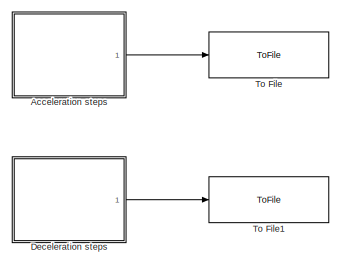
[diagram: root canvas - part 1/3, top left region]
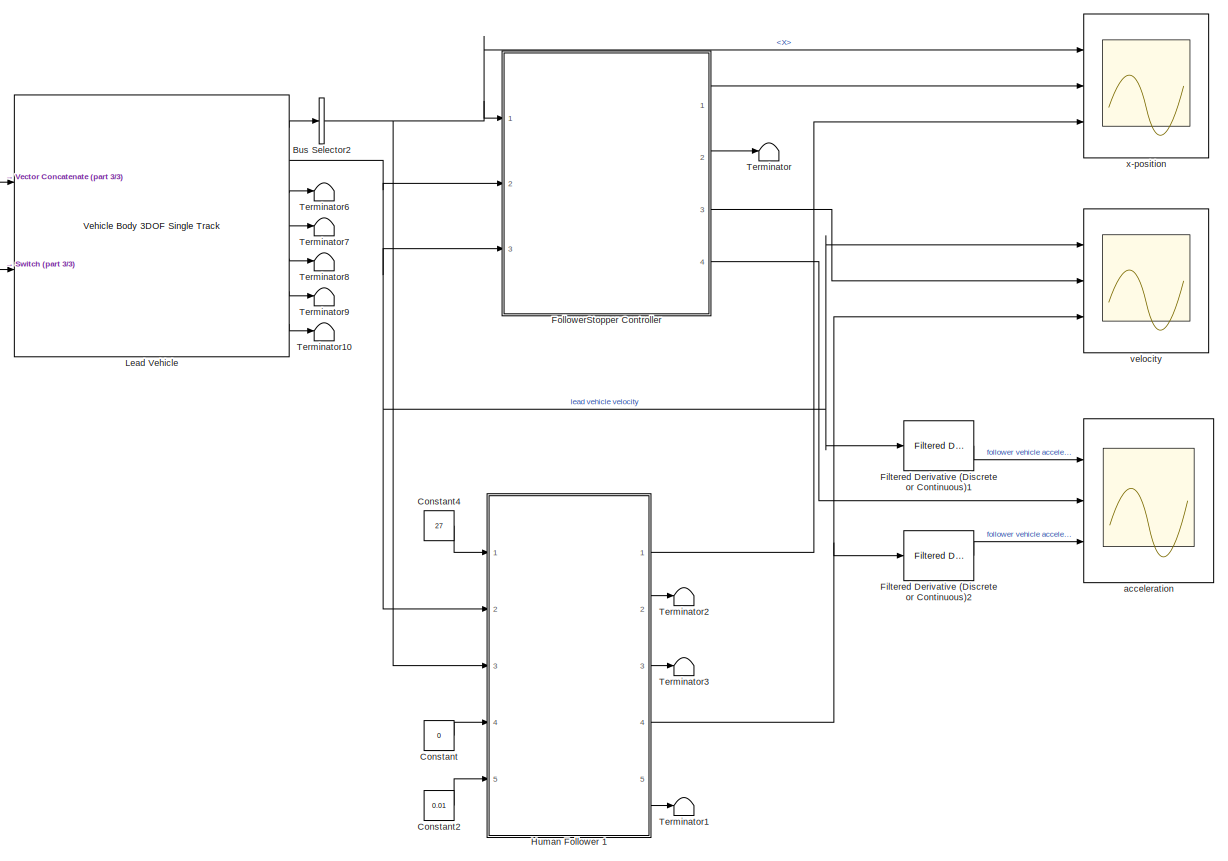
[diagram: root canvas - part 2/3, central region]
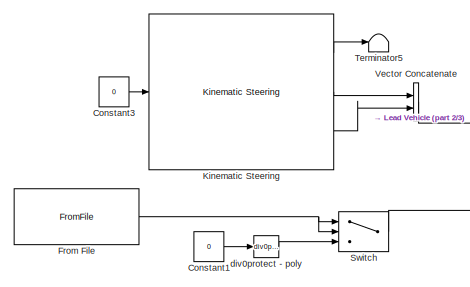
[diagram: root canvas - part 3/3, middle left region]
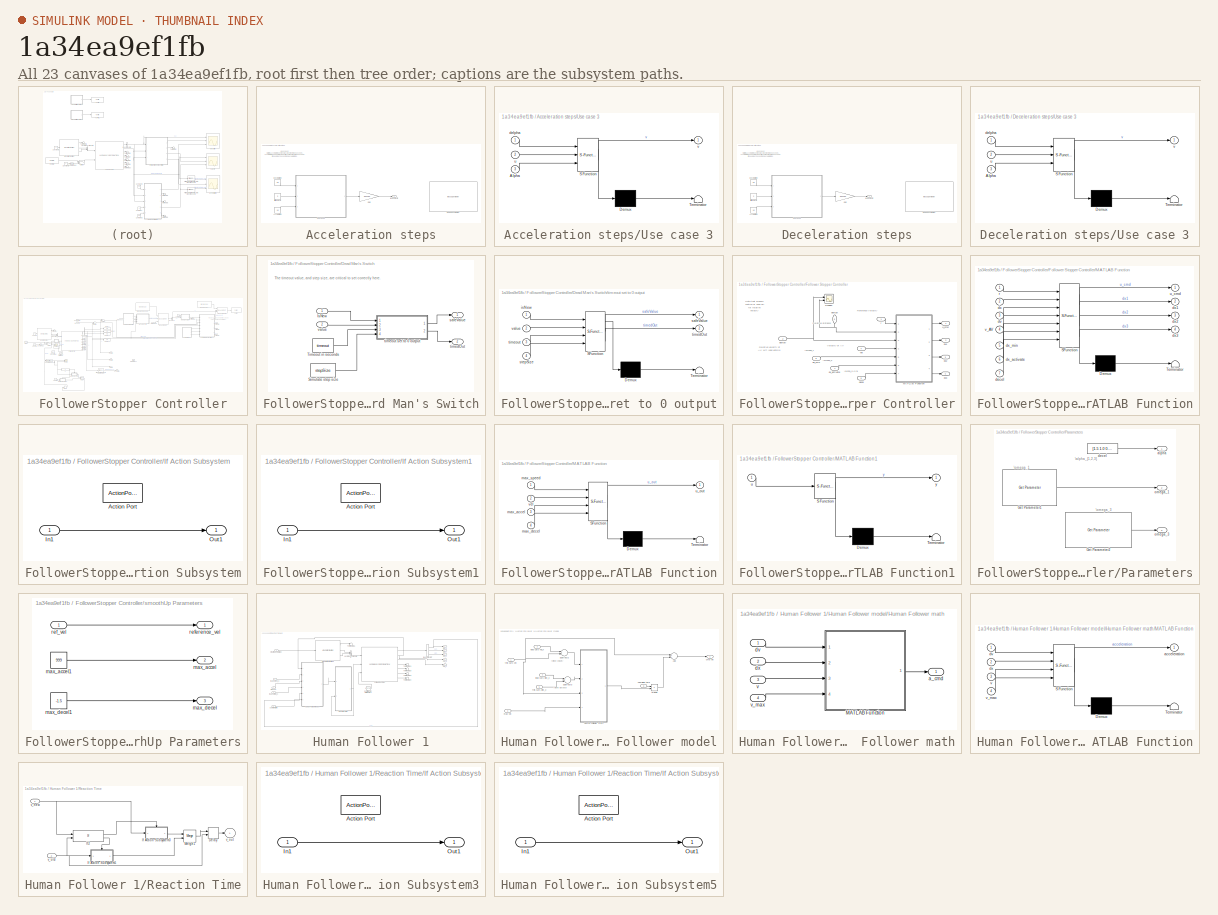
[diagram: thumbnail index - all 23 canvases of the model, root first then tree order]
MODEL slx_1a34ea9ef1fb
KIND model
CONFIG AbsTol = auto
CONFIG EnableMultiTasking = off
CONFIG FixedStep = 0.01
CONFIG MaxStep = auto
CONFIG MinStep = auto
CONFIG RelTol = 1e-3
CONFIG SampleTimeConstraint = Unconstrained
CONFIG Solver = FixedStepAuto
CONFIG SolverName = FixedStepAuto
CONFIG StartTime = 0.0
CONFIG StopTime = 240
BLOCK [SubSystem] Acceleration steps
  Commented = on
  Ports = [0, 1]
  RequestExecContextInheritance = off
BLOCK [Constant] Acceleration steps/Acceleration
  Value = 1.5
BLOCK [Constant] Acceleration steps/Deceleration
  Value = -1.5
BLOCK [Gain] Acceleration steps/Gain
  Gain = 0.44704
  OutDataTypeStr = Inherit: Inherit via internal rule
  ParamDataTypeStr = Inherit: Inherit via internal rule
  SaturateOnIntegerOverflow = off
BLOCK [Constant] Acceleration steps/Initial Velocity
  Value = 0
BLOCK [MessageViewer] Acceleration steps/Sequence Viewer
BLOCK [SubSystem] Acceleration steps/Use case 3
  ErrorFcn = Stateflow.Translate.translate
  PermitHierarchicalResolution = ExplicitOnly
  Ports = [3, 1]
  RequestExecContextInheritance = off
  SFBlockType = Chart
  TreatAsAtomicUnit = on
BLOCK [Demux] Acceleration steps/Use case 3/ Demux 
  Outputs = 1
  Ports = [1, 1]
BLOCK [S-Function] Acceleration steps/Use case 3/ SFunction 
  EnableBusSupport = on
  FunctionName = sf_sfun
  PortCounts = [3 2]
  Ports = [3, 2]
  SFcnIsStateOwnerBlock = off
  SFunctionDeploymentMode = off
  Tag = Stateflow S-Function delayTestVehicleModel 3
BLOCK [Terminator] Acceleration steps/Use case 3/ Terminator 
BLOCK [Inport] Acceleration steps/Use case 3/Alpha
  IconDisplay = Port number
  Port = 3
BLOCK [Inport] Acceleration steps/Use case 3/delpha
  IconDisplay = Port number
BLOCK [Inport] Acceleration steps/Use case 3/u
  IconDisplay = Port number
  Port = 2
BLOCK [Outport] Acceleration steps/Use case 3/v
  IconDisplay = Port number
BLOCK [Outport] Acceleration steps/lead velocity
  IconDisplay = Port number
BLOCK [BusSelector] Bus Selector2
  OutputAsBus = off
  OutputSignals = InertFrm.Geom.Disp.X
  Ports = [1, 1]
BLOCK [Constant] Constant
  Value = 0
BLOCK [Constant] Constant1
  Value = 0
BLOCK [Constant] Constant2
  Value = 0.01
BLOCK [Constant] Constant3
  Value = 0
BLOCK [Constant] Constant4
  Value = 27
BLOCK [SubSystem] Deceleration steps
  Commented = on
  Ports = [0, 1]
  RequestExecContextInheritance = off
BLOCK [Constant] Deceleration steps/Acceleration
  Value = 1.5
BLOCK [Constant] Deceleration steps/Deceleration
  Value = -1.5
BLOCK [Gain] Deceleration steps/Gain
  Gain = 0.44704
  OutDataTypeStr = Inherit: Inherit via internal rule
  ParamDataTypeStr = Inherit: Inherit via internal rule
  SaturateOnIntegerOverflow = off
BLOCK [Constant] Deceleration steps/Initial Velocity
  Value = 0
BLOCK [MessageViewer] Deceleration steps/Sequence Viewer
BLOCK [SubSystem] Deceleration steps/Use case 3
  ErrorFcn = Stateflow.Translate.translate
  PermitHierarchicalResolution = ExplicitOnly
  Ports = [3, 1]
  RequestExecContextInheritance = off
  SFBlockType = Chart
  TreatAsAtomicUnit = on
BLOCK [Demux] Deceleration steps/Use case 3/ Demux 
  Outputs = 1
  Ports = [1, 1]
BLOCK [S-Function] Deceleration steps/Use case 3/ SFunction 
  EnableBusSupport = on
  FunctionName = sf_sfun
  PortCounts = [3 2]
  Ports = [3, 2]
  SFcnIsStateOwnerBlock = off
  SFunctionDeploymentMode = off
  Tag = Stateflow S-Function delayTestVehicleModel 4
BLOCK [Terminator] Deceleration steps/Use case 3/ Terminator 
BLOCK [Inport] Deceleration steps/Use case 3/Alpha
  IconDisplay = Port number
  Port = 3
BLOCK [Inport] Deceleration steps/Use case 3/delpha
  IconDisplay = Port number
BLOCK [Inport] Deceleration steps/Use case 3/u
  IconDisplay = Port number
  Port = 2
BLOCK [Outport] Deceleration steps/Use case 3/v
  IconDisplay = Port number
BLOCK [Outport] Deceleration steps/lead velocity
  IconDisplay = Port number
BLOCK [Reference] Filtered Derivative (Discrete or Continuous)1  REF=peGeneralControl/Filtered Derivative
(Discrete or Continuous)
  Ports = [1, 1]
  SourceBlock = peGeneralControl/Filtered Derivative\n(Discrete or Continuous)
  SourceType = Filtered Derivative (Discrete or Continuous)
BLOCK [Reference] Filtered Derivative (Discrete or Continuous)2  REF=peGeneralControl/Filtered Derivative
(Discrete or Continuous)
  Ports = [1, 1]
  SourceBlock = peGeneralControl/Filtered Derivative\n(Discrete or Continuous)
  SourceType = Filtered Derivative (Discrete or Continuous)
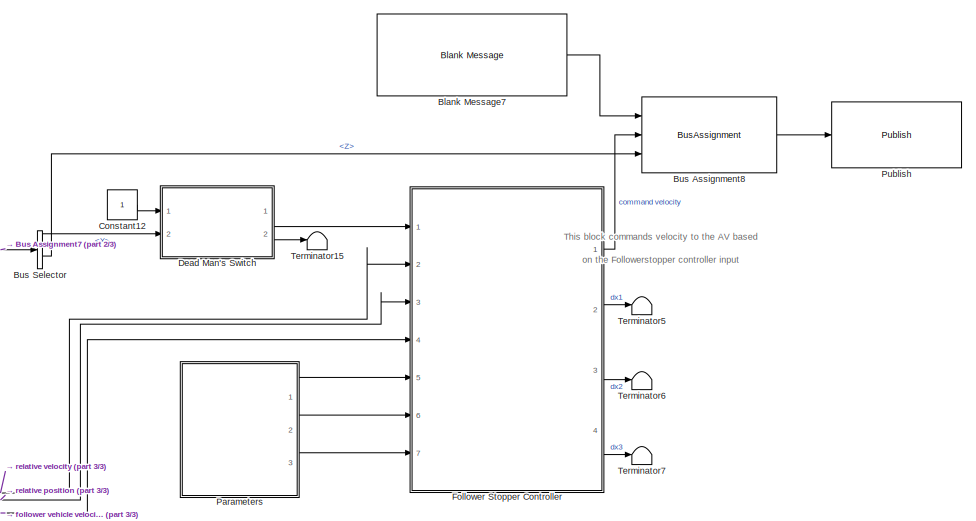
[diagram: FollowerStopper Controller - part 1/3, top right region]
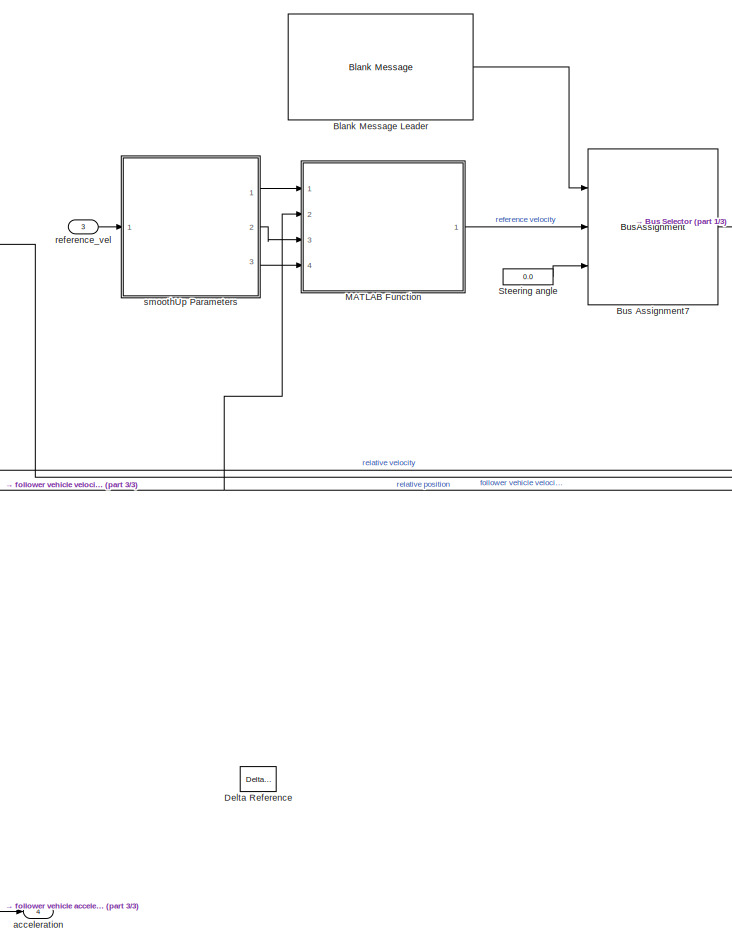
[diagram: FollowerStopper Controller - part 2/3, center side, full height]
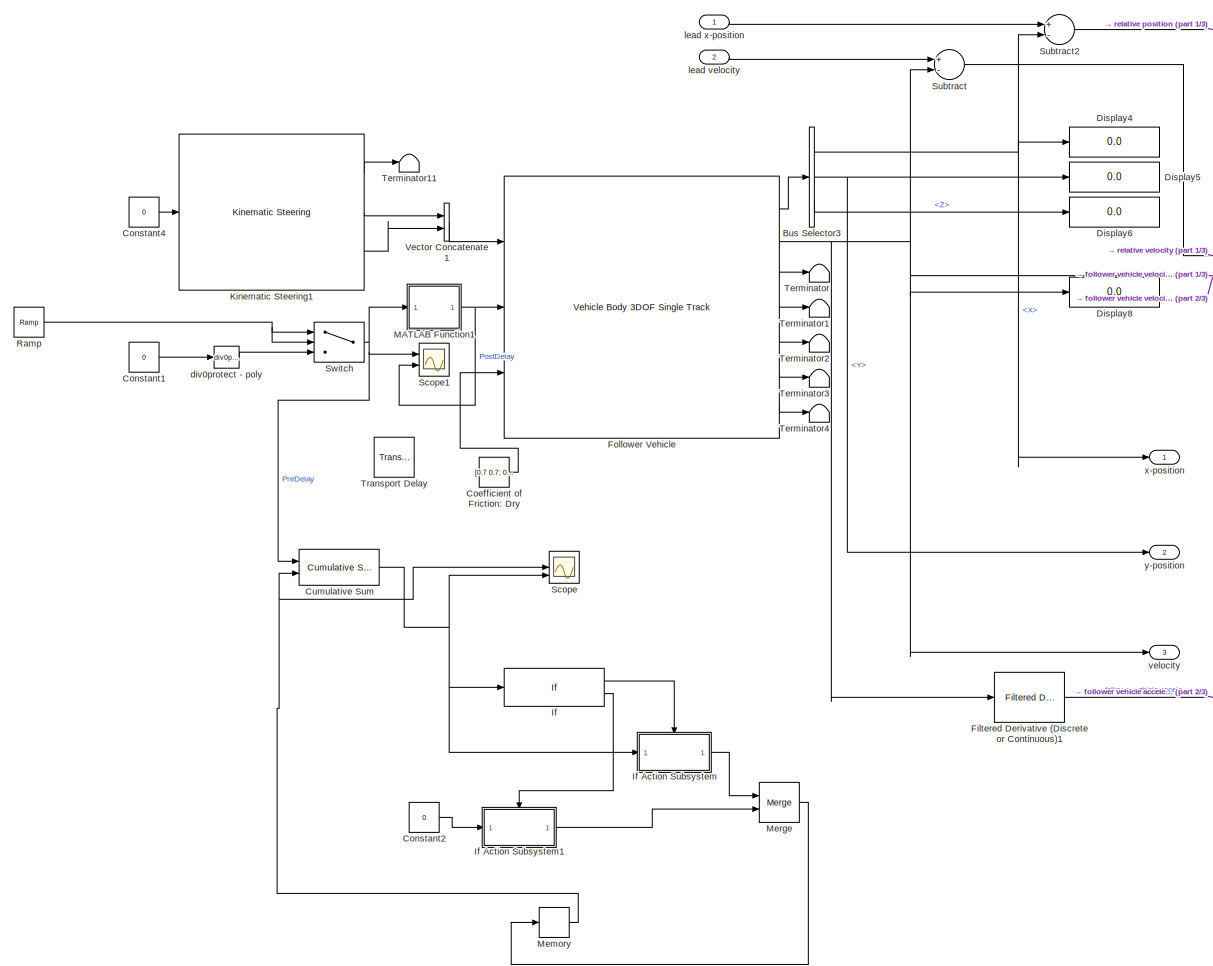
[diagram: FollowerStopper Controller - part 3/3, left side, full height]
BLOCK [SubSystem] FollowerStopper Controller
  Ports = [3, 4]
  RequestExecContextInheritance = off
BLOCK [Reference] FollowerStopper Controller/Blank Message Leader  REF=robotlib/Blank Message
  Ports = [0, 1]
  SourceBlock = robotlib/Blank Message
  SourceProductBaseCode = RO
  SourceProductName = Robotics System Toolbox
  SourceType = ROS Blank Message
BLOCK [Reference] FollowerStopper Controller/Blank Message7  REF=robotlib/Blank Message
  Ports = [0, 1]
  SourceBlock = robotlib/Blank Message
  SourceProductBaseCode = RO
  SourceProductName = Robotics System Toolbox
  SourceType = ROS Blank Message
BLOCK [BusAssignment] FollowerStopper Controller/Bus Assignment7
  AssignedSignals = Linear.X,Angular.Z
  Ports = [3, 1]
BLOCK [BusAssignment] FollowerStopper Controller/Bus Assignment8
  AssignedSignals = Linear.X,Angular.Z
  Ports = [3, 1]
BLOCK [BusSelector] FollowerStopper Controller/Bus Selector
  OutputAsBus = off
  OutputSignals = Linear.X,Angular.Z
  Ports = [1, 2]
BLOCK [BusSelector] FollowerStopper Controller/Bus Selector3
  OutputAsBus = off
  OutputSignals = InertFrm.Geom.Disp.X,InertFrm.Geom.Disp.Y,InertFrm.Geom.Disp.Z
  Ports = [1, 3]
BLOCK [Constant] FollowerStopper Controller/Coefficient of Friction: Dry
  Value = [0.7 0.7; 0.7 0.7]
BLOCK [Constant] FollowerStopper Controller/Constant1
  Value = 0
BLOCK [Constant] FollowerStopper Controller/Constant12
BLOCK [Constant] FollowerStopper Controller/Constant2
  Commented = on
  Value = 0
BLOCK [Constant] FollowerStopper Controller/Constant4
  Value = 0
BLOCK [Reference] FollowerStopper Controller/Cumulative Sum  REF=dspmathops/Cumulative
Sum
  Commented = on
  Ports = [2, 1]
  SourceBlock = dspmathops/Cumulative\nSum
  SourceProductBaseCode = DS
  SourceProductName = DSP System Toolbox
  SourceType = Cumulative Sum
  UserDataPersistent = on
BLOCK [SubSystem] FollowerStopper Controller/Dead Man's Switch
  Ports = [2, 2]
  RequestExecContextInheritance = off
  TreatAsAtomicUnit = on
BLOCK [Inport] FollowerStopper Controller/Dead Man's Switch/IsNew
  IconDisplay = Port number
BLOCK [Constant] FollowerStopper Controller/Dead Man's Switch/Simulate step size
  Value = stepSize
BLOCK [Constant] FollowerStopper Controller/Dead Man's Switch/Timeout in seconds
  Value = timeout
BLOCK [Outport] FollowerStopper Controller/Dead Man's Switch/safeValue
  IconDisplay = Port number
  InitialOutput = [0]
BLOCK [Outport] FollowerStopper Controller/Dead Man's Switch/timedOut
  IconDisplay = Port number
  InitialOutput = [0]
  Port = 2
BLOCK [SubSystem] FollowerStopper Controller/Dead Man's Switch/timeout set to 0 output
  ErrorFcn = Stateflow.Translate.translate
  PermitHierarchicalResolution = ExplicitOnly
  Ports = [4, 2]
  RequestExecContextInheritance = off
  SFBlockType = MATLAB Function
  TreatAsAtomicUnit = on
BLOCK [Demux] FollowerStopper Controller/Dead Man's Switch/timeout set to 0 output/ Demux 
  Outputs = 1
  Ports = [1, 1]
BLOCK [S-Function] FollowerStopper Controller/Dead Man's Switch/timeout set to 0 output/ SFunction 
  EnableBusSupport = on
  FunctionName = sf_sfun
  PortCounts = [4 3]
  Ports = [4, 3]
  SFcnIsStateOwnerBlock = off
  SFunctionDeploymentMode = off
  Tag = Stateflow S-Function delayTestVehicleModel 1
BLOCK [Terminator] FollowerStopper Controller/Dead Man's Switch/timeout set to 0 output/ Terminator 
BLOCK [Inport] FollowerStopper Controller/Dead Man's Switch/timeout set to 0 output/isNew
  IconDisplay = Port number
BLOCK [Outport] FollowerStopper Controller/Dead Man's Switch/timeout set to 0 output/safeValue
  IconDisplay = Port number
BLOCK [Inport] FollowerStopper Controller/Dead Man's Switch/timeout set to 0 output/stepSize
  IconDisplay = Port number
  Port = 4
BLOCK [Outport] FollowerStopper Controller/Dead Man's Switch/timeout set to 0 output/timedOut
  IconDisplay = Port number
  Port = 2
BLOCK [Inport] FollowerStopper Controller/Dead Man's Switch/timeout set to 0 output/timeout
  IconDisplay = Port number
  Port = 3
BLOCK [Inport] FollowerStopper Controller/Dead Man's Switch/timeout set to 0 output/value
  IconDisplay = Port number
  Port = 2
BLOCK [Inport] FollowerStopper Controller/Dead Man's Switch/value
  IconDisplay = Port number
  Port = 2
BLOCK [Reference] FollowerStopper Controller/Delta Reference  REF=pe_lib/Connections/Delta Reference
  Ports = [0, 0, 0, 0, 0, 1]
  SourceBlock = pe_lib/Connections/Delta Reference
  SourceProductBaseCode = PS
  SourceProductName = Simscape Power Systems
  SourceType = Delta Reference
BLOCK [Display] FollowerStopper Controller/Display4
  Decimation = 1
  Ports = [1]
BLOCK [Display] FollowerStopper Controller/Display5
  Decimation = 1
  Ports = [1]
BLOCK [Display] FollowerStopper Controller/Display6
  Decimation = 1
  Ports = [1]
BLOCK [Display] FollowerStopper Controller/Display8
  Decimation = 1
  Ports = [1]
BLOCK [Reference] FollowerStopper Controller/Filtered Derivative (Discrete or Continuous)1  REF=peGeneralControl/Filtered Derivative
(Discrete or Continuous)
  Ports = [1, 1]
  SourceBlock = peGeneralControl/Filtered Derivative\n(Discrete or Continuous)
  SourceType = Filtered Derivative (Discrete or Continuous)
BLOCK [SubSystem] FollowerStopper Controller/Follower Stopper Controller
  Ports = [7, 4]
  RequestExecContextInheritance = off
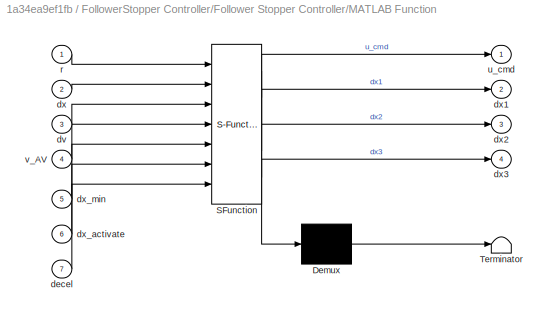
BLOCK [SubSystem] FollowerStopper Controller/Follower Stopper Controller/MATLAB Function
  ErrorFcn = Stateflow.Translate.translate
  PermitHierarchicalResolution = ExplicitOnly
  Ports = [7, 4]
  RequestExecContextInheritance = off
  SFBlockType = MATLAB Function
  TreatAsAtomicUnit = on
BLOCK [Demux] FollowerStopper Controller/Follower Stopper Controller/MATLAB Function/ Demux 
  Outputs = 1
  Ports = [1, 1]
BLOCK [S-Function] FollowerStopper Controller/Follower Stopper Controller/MATLAB Function/ SFunction 
  EnableBusSupport = on
  FunctionName = sf_sfun
  PortCounts = [7 5]
  Ports = [7, 5]
  SFcnIsStateOwnerBlock = off
  SFunctionDeploymentMode = off
  Tag = Stateflow S-Function delayTestVehicleModel 6
BLOCK [Terminator] FollowerStopper Controller/Follower Stopper Controller/MATLAB Function/ Terminator 
BLOCK [Inport] FollowerStopper Controller/Follower Stopper Controller/MATLAB Function/decel
  IconDisplay = Port number
  Port = 7
BLOCK [Inport] FollowerStopper Controller/Follower Stopper Controller/MATLAB Function/dv
  IconDisplay = Port number
  Port = 3
BLOCK [Inport] FollowerStopper Controller/Follower Stopper Controller/MATLAB Function/dx
  IconDisplay = Port number
  Port = 2
BLOCK [Outport] FollowerStopper Controller/Follower Stopper Controller/MATLAB Function/dx1
  IconDisplay = Port number
  Port = 2
BLOCK [Outport] FollowerStopper Controller/Follower Stopper Controller/MATLAB Function/dx2
  IconDisplay = Port number
  Port = 3
BLOCK [Outport] FollowerStopper Controller/Follower Stopper Controller/MATLAB Function/dx3
  IconDisplay = Port number
  Port = 4
BLOCK [Inport] FollowerStopper Controller/Follower Stopper Controller/MATLAB Function/dx_activate
  IconDisplay = Port number
  Port = 6
BLOCK [Inport] FollowerStopper Controller/Follower Stopper Controller/MATLAB Function/dx_min
  IconDisplay = Port number
  Port = 5
BLOCK [Inport] FollowerStopper Controller/Follower Stopper Controller/MATLAB Function/r
  IconDisplay = Port number
BLOCK [Outport] FollowerStopper Controller/Follower Stopper Controller/MATLAB Function/u_cmd
  IconDisplay = Port number
BLOCK [Inport] FollowerStopper Controller/Follower Stopper Controller/MATLAB Function/v_AV
  IconDisplay = Port number
  Port = 4
BLOCK [Scope] FollowerStopper Controller/Follower Stopper Controller/Scope1
  Floating = off
  NumInputPorts = 2
  Ports = [2]
  ScopeSpecificationString = Simulink.scopes.TimeScopeBlockCfg('CurrentConfiguration', extmgr.ConfigurationSet(extmgr.Configuration('Core','General UI',true),extmgr.Configuration('Core','Source UI',true),extmgr.Configuration('Sources','WiredSimulink',true,'DataLoggingVariableName','ScopeData1'),extmgr.Configuration('Visuals','Time Domain',true),extmgr.Configuration('Tools','Plot Navigation',true),extmgr.Configuration('Tools',...<+40ch>
BLOCK [Inport] FollowerStopper Controller/Follower Stopper Controller/decel
  IconDisplay = Port number
  Port = 5
BLOCK [Inport] FollowerStopper Controller/Follower Stopper Controller/deltaV
  IconDisplay = Port number
  Port = 2
BLOCK [Inport] FollowerStopper Controller/Follower Stopper Controller/deltaX
  IconDisplay = Port number
  Port = 3
BLOCK [Outport] FollowerStopper Controller/Follower Stopper Controller/dx1
  IconDisplay = Port number
  Port = 2
BLOCK [Outport] FollowerStopper Controller/Follower Stopper Controller/dx2
  IconDisplay = Port number
  Port = 3
BLOCK [Outport] FollowerStopper Controller/Follower Stopper Controller/dx3
  IconDisplay = Port number
  Port = 4
BLOCK [Inport] FollowerStopper Controller/Follower Stopper Controller/dx_activate
  IconDisplay = Port number
  Port = 7
BLOCK [Inport] FollowerStopper Controller/Follower Stopper Controller/dx_min
  IconDisplay = Port number
  Port = 6
BLOCK [Inport] FollowerStopper Controller/Follower Stopper Controller/r
  IconDisplay = Port number
BLOCK [Outport] FollowerStopper Controller/Follower Stopper Controller/u_cmd
  IconDisplay = Port number
BLOCK [Inport] FollowerStopper Controller/Follower Stopper Controller/vel
  IconDisplay = Port number
  Port = 4
BLOCK [Reference] FollowerStopper Controller/Follower Vehicle  REF=autolibshared/Vehicle Body 3DOF Single Track
  Ports = [3, 7]
  SourceBlock = autolibshared/Vehicle Body 3DOF Single Track
  SourceProductBaseCode = PW
  SourceProductName = Powertrain Blockset
  SourceType = Vehicle Body 3DOF Lateral
BLOCK [If] FollowerStopper Controller/If
  Commented = on
  IfExpression = u1 > 133
  Ports = [1, 2]
BLOCK [SubSystem] FollowerStopper Controller/If Action Subsystem
  Commented = on
  Ports = [1, 1, 0, 0, 0, 0, 0, 1]
  RequestExecContextInheritance = off
  TreatAsAtomicUnit = on
BLOCK [ActionPort] FollowerStopper Controller/If Action Subsystem/Action Port
  ActionType = then
BLOCK [Inport] FollowerStopper Controller/If Action Subsystem/In1
  IconDisplay = Port number
BLOCK [Outport] FollowerStopper Controller/If Action Subsystem/Out1
  IconDisplay = Port number
BLOCK [SubSystem] FollowerStopper Controller/If Action Subsystem1
  Commented = on
  Ports = [1, 1, 0, 0, 0, 0, 0, 1]
  RequestExecContextInheritance = off
  TreatAsAtomicUnit = on
BLOCK [ActionPort] FollowerStopper Controller/If Action Subsystem1/Action Port
  ActionType = else
BLOCK [Inport] FollowerStopper Controller/If Action Subsystem1/In1
  IconDisplay = Port number
BLOCK [Outport] FollowerStopper Controller/If Action Subsystem1/Out1
  IconDisplay = Port number
BLOCK [Reference] FollowerStopper Controller/Kinematic Steering1  REF=vehdynlibsteering/Kinematic Steering
  Ports = [1, 3]
  SourceBlock = vehdynlibsteering/Kinematic Steering
  SourceProductBaseCode = VE
  SourceProductName = Vehicle Dynamics Blockset
  SourceType = Kinematic Steering
BLOCK [SubSystem] FollowerStopper Controller/MATLAB Function
  ErrorFcn = Stateflow.Translate.translate
  PermitHierarchicalResolution = ExplicitOnly
  Ports = [4, 1]
  RequestExecContextInheritance = off
  SFBlockType = MATLAB Function
  TreatAsAtomicUnit = on
BLOCK [Demux] FollowerStopper Controller/MATLAB Function/ Demux 
  Outputs = 1
  Ports = [1, 1]
BLOCK [S-Function] FollowerStopper Controller/MATLAB Function/ SFunction 
  EnableBusSupport = on
  FunctionName = sf_sfun
  PortCounts = [4 2]
  Ports = [4, 2]
  SFcnIsStateOwnerBlock = off
  SFunctionDeploymentMode = off
  Tag = Stateflow S-Function delayTestVehicleModel 2
BLOCK [Terminator] FollowerStopper Controller/MATLAB Function/ Terminator 
BLOCK [Inport] FollowerStopper Controller/MATLAB Function/max_accel
  IconDisplay = Port number
  Port = 3
BLOCK [Inport] FollowerStopper Controller/MATLAB Function/max_decel
  IconDisplay = Port number
  Port = 4
BLOCK [Inport] FollowerStopper Controller/MATLAB Function/max_speed
  IconDisplay = Port number
BLOCK [Outport] FollowerStopper Controller/MATLAB Function/u_out
  IconDisplay = Port number
BLOCK [Inport] FollowerStopper Controller/MATLAB Function/vel
  IconDisplay = Port number
  Port = 2
BLOCK [SubSystem] FollowerStopper Controller/MATLAB Function1
  ErrorFcn = Stateflow.Translate.translate
  PermitHierarchicalResolution = ExplicitOnly
  Ports = [1, 1]
  RequestExecContextInheritance = off
  SFBlockType = MATLAB Function
  TreatAsAtomicUnit = on
BLOCK [Demux] FollowerStopper Controller/MATLAB Function1/ Demux 
  Outputs = 1
  Ports = [1, 1]
BLOCK [S-Function] FollowerStopper Controller/MATLAB Function1/ SFunction 
  EnableBusSupport = on
  FunctionName = sf_sfun
  PortCounts = [1 2]
  Ports = [1, 2]
  SFcnIsStateOwnerBlock = off
  SFunctionDeploymentMode = off
  Tag = Stateflow S-Function delayTestVehicleModel 7
BLOCK [Terminator] FollowerStopper Controller/MATLAB Function1/ Terminator 
BLOCK [Inport] FollowerStopper Controller/MATLAB Function1/u
  IconDisplay = Port number
BLOCK [Outport] FollowerStopper Controller/MATLAB Function1/y
  IconDisplay = Port number
BLOCK [Memory] FollowerStopper Controller/Memory
  Commented = on
BLOCK [Merge] FollowerStopper Controller/Merge
  Commented = on
  Ports = [2, 1]
BLOCK [SubSystem] FollowerStopper Controller/Parameters
  Ports = [0, 3]
  RequestExecContextInheritance = off
BLOCK [Reference] FollowerStopper Controller/Parameters/Get Parameter1  REF=robotlib/Get Parameter
  Ports = [0, 1]
  SourceBlock = robotlib/Get Parameter
  SourceProductBaseCode = RO
  SourceProductName = Robotics System Toolbox
  SourceType = ROS Get Parameter
BLOCK [Reference] FollowerStopper Controller/Parameters/Get Parameter2  REF=robotlib/Get Parameter
  Ports = [0, 1]
  SourceBlock = robotlib/Get Parameter
  SourceProductBaseCode = RO
  SourceProductName = Robotics System Toolbox
  SourceType = ROS Get Parameter
BLOCK [Outport] FollowerStopper Controller/Parameters/alpha
  IconDisplay = Port number
BLOCK [Constant] FollowerStopper Controller/Parameters/decel
  OutDataTypeStr = double
  SampleTime = -1
  Value = [1.5 1.0 0.5]
BLOCK [Outport] FollowerStopper Controller/Parameters/omega_1
  IconDisplay = Port number
  Port = 2
BLOCK [Outport] FollowerStopper Controller/Parameters/omega_3
  IconDisplay = Port number
  Port = 3
BLOCK [Reference] FollowerStopper Controller/Publish  REF=robotlib/Publish
  Ports = [1]
  SourceBlock = robotlib/Publish
  SourceProductBaseCode = RO
  SourceProductName = Robotics System Toolbox
  SourceType = ROS Publish
BLOCK [Reference] FollowerStopper Controller/Ramp  REF=simulink/Sources/Ramp
  Ports = [0, 1]
  SourceBlock = simulink/Sources/Ramp
  SourceProductBaseCode = SL
  SourceProductName = Simulink
  SourceType = Ramp
BLOCK [Scope] FollowerStopper Controller/Scope
  Commented = on
  Floating = off
  NumInputPorts = 3
  Ports = [3]
  ScopeSpecificationString = Simulink.scopes.TimeScopeBlockCfg('CurrentConfiguration', extmgr.ConfigurationSet(extmgr.Configuration('Core','General UI',true),extmgr.Configuration('Core','Source UI',true),extmgr.Configuration('Sources','WiredSimulink',true,'DataLoggingVariableName','ScopeData1'),extmgr.Configuration('Visuals','Time Domain',true,'SerializedDisplays',{struct('MinYLimReal','-4.94146','MaxYLimReal','44.47313','YLa...<+1425ch>
BLOCK [Scope] FollowerStopper Controller/Scope1
  Floating = off
  NumInputPorts = 2
  Ports = [2]
  ScopeSpecificationString = Simulink.scopes.TimeScopeBlockCfg('CurrentConfiguration', extmgr.ConfigurationSet(extmgr.Configuration('Core','General UI',true),extmgr.Configuration('Core','Source UI',true),extmgr.Configuration('Sources','WiredSimulink',true,'DataLoggingVariableName','ScopeData1'),extmgr.Configuration('Visuals','Time Domain',true,'SerializedDisplays',{struct('MinYLimReal','-0.00937','MaxYLimReal','0.08437','YLab...<+1455ch>
BLOCK [Constant] FollowerStopper Controller/Steering angle
  Value = 0.0
BLOCK [Sum] FollowerStopper Controller/Subtract
  InputSameDT = off
  Inputs = +-
  OutDataTypeStr = Inherit: Inherit via internal rule
  Ports = [2, 1]
  SaturateOnIntegerOverflow = off
BLOCK [Sum] FollowerStopper Controller/Subtract2
  InputSameDT = off
  Inputs = +-
  OutDataTypeStr = Inherit: Inherit via internal rule
  Ports = [2, 1]
  SaturateOnIntegerOverflow = off
BLOCK [Switch] FollowerStopper Controller/Switch
  Criteria = u2 > Threshold
  InputSameDT = off
  SaturateOnIntegerOverflow = off
BLOCK [Terminator] FollowerStopper Controller/Terminator
BLOCK [Terminator] FollowerStopper Controller/Terminator1
BLOCK [Terminator] FollowerStopper Controller/Terminator11
BLOCK [Terminator] FollowerStopper Controller/Terminator15
BLOCK [Terminator] FollowerStopper Controller/Terminator2
BLOCK [Terminator] FollowerStopper Controller/Terminator3
BLOCK [Terminator] FollowerStopper Controller/Terminator4
BLOCK [Terminator] FollowerStopper Controller/Terminator5
BLOCK [Terminator] FollowerStopper Controller/Terminator6
BLOCK [Terminator] FollowerStopper Controller/Terminator7
BLOCK [TransportDelay] FollowerStopper Controller/Transport Delay
  Commented = on
  DelayTime = 1.3
  Ports = [1, 1]
BLOCK [Concatenate] FollowerStopper Controller/Vector Concatenate1
  Ports = [2, 1]
BLOCK [Outport] FollowerStopper Controller/acceleration
  IconDisplay = Port number
  Port = 4
BLOCK [Reference] FollowerStopper Controller/div0protect - poly  REF=autolibutils/div0protect - poly
  Ports = [1, 1]
  SourceBlock = autolibutils/div0protect - poly
  SourceProductBaseCode = PW
  SourceProductName = Powertrain Blockset
BLOCK [Inport] FollowerStopper Controller/lead velocity
  IconDisplay = Port number
  Port = 2
BLOCK [Inport] FollowerStopper Controller/lead x-position
  IconDisplay = Port number
BLOCK [Inport] FollowerStopper Controller/reference_vel
  IconDisplay = Port number
  Port = 3
BLOCK [SubSystem] FollowerStopper Controller/smoothUp Parameters
  Ports = [1, 3]
  RequestExecContextInheritance = off
BLOCK [Outport] FollowerStopper Controller/smoothUp Parameters/max_accel
  IconDisplay = Port number
  Port = 2
BLOCK [Constant] FollowerStopper Controller/smoothUp Parameters/max_accel1
  Value = 999
BLOCK [Outport] FollowerStopper Controller/smoothUp Parameters/max_decel
  IconDisplay = Port number
  Port = 3
BLOCK [Constant] FollowerStopper Controller/smoothUp Parameters/max_decel1
  Value = -1.5
BLOCK [Inport] FollowerStopper Controller/smoothUp Parameters/ref_vel
  IconDisplay = Port number
BLOCK [Outport] FollowerStopper Controller/smoothUp Parameters/reference_vel
  IconDisplay = Port number
BLOCK [Outport] FollowerStopper Controller/velocity
  IconDisplay = Port number
  Port = 3
BLOCK [Outport] FollowerStopper Controller/x-position
  IconDisplay = Port number
BLOCK [Outport] FollowerStopper Controller/y-position
  IconDisplay = Port number
  Port = 2
BLOCK [FromFile] From File
  FileName = accelerationSteps.mat
  SampleTime = 0.01
BLOCK [SubSystem] Human Follower 1
  Ports = [5, 5]
  RequestExecContextInheritance = off
BLOCK [BusSelector] Human Follower 1/Bus Selector7
  OutputAsBus = off
  OutputSignals = InertFrm.Cg.Disp.X,InertFrm.Cg.Disp.Y,InertFrm.Cg.Disp.Z
  Ports = [1, 3]
BLOCK [Constant] Human Follower 1/Coefficient of Friction: Dry1
  Value = [0.7 0.7; 0.7 0.7]
BLOCK [Reference] Human Follower 1/Follower Vehicle1  REF=autolibshared/Vehicle Body 3DOF Single Track
  Ports = [3, 7]
  SourceBlock = autolibshared/Vehicle Body 3DOF Single Track
  SourceProductBaseCode = PW
  SourceProductName = Powertrain Blockset
  SourceType = Vehicle Body 3DOF Lateral
BLOCK [SubSystem] Human Follower 1/Human Follower model
  Ports = [6, 1]
  RequestExecContextInheritance = off
BLOCK [Sum] Human Follower 1/Human Follower model/Add
  InputSameDT = off
  OutDataTypeStr = Inherit: Inherit via internal rule
  Ports = [2, 1]
  SaturateOnIntegerOverflow = off
BLOCK [SubSystem] Human Follower 1/Human Follower model/Human Follower math
  Ports = [4, 1]
  RequestExecContextInheritance = off
BLOCK [SubSystem] Human Follower 1/Human Follower model/Human Follower math/MATLAB Function
  ErrorFcn = Stateflow.Translate.translate
  PermitHierarchicalResolution = ExplicitOnly
  Ports = [4, 1]
  RequestExecContextInheritance = off
  SFBlockType = MATLAB Function
  TreatAsAtomicUnit = on
BLOCK [Demux] Human Follower 1/Human Follower model/Human Follower math/MATLAB Function/ Demux 
  Outputs = 1
  Ports = [1, 1]
BLOCK [S-Function] Human Follower 1/Human Follower model/Human Follower math/MATLAB Function/ SFunction 
  EnableBusSupport = on
  FunctionName = sf_sfun
  PortCounts = [4 2]
  Ports = [4, 2]
  SFcnIsStateOwnerBlock = off
  SFunctionDeploymentMode = off
  Tag = Stateflow S-Function delayTestVehicleModel 5
BLOCK [Terminator] Human Follower 1/Human Follower model/Human Follower math/MATLAB Function/ Terminator 
BLOCK [Outport] Human Follower 1/Human Follower model/Human Follower math/MATLAB Function/acceleration
  IconDisplay = Port number
BLOCK [Inport] Human Follower 1/Human Follower model/Human Follower math/MATLAB Function/dv
  IconDisplay = Port number
BLOCK [Inport] Human Follower 1/Human Follower model/Human Follower math/MATLAB Function/dx
  IconDisplay = Port number
  Port = 2
BLOCK [Inport] Human Follower 1/Human Follower model/Human Follower math/MATLAB Function/v
  IconDisplay = Port number
  Port = 3
BLOCK [Inport] Human Follower 1/Human Follower model/Human Follower math/MATLAB Function/v_max
  IconDisplay = Port number
  Port = 4
BLOCK [Outport] Human Follower 1/Human Follower model/Human Follower math/a_cmd
  IconDisplay = Port number
BLOCK [Inport] Human Follower 1/Human Follower model/Human Follower math/dv
  IconDisplay = Port number
BLOCK [Inport] Human Follower 1/Human Follower model/Human Follower math/dx
  IconDisplay = Port number
  Port = 2
BLOCK [Inport] Human Follower 1/Human Follower model/Human Follower math/v
  IconDisplay = Port number
  Port = 3
BLOCK [Inport] Human Follower 1/Human Follower model/Human Follower math/v_max
  IconDisplay = Port number
  Port = 4
BLOCK [Product] Human Follower 1/Human Follower model/Multiply
  InputSameDT = off
  OutDataTypeStr = Inherit: Inherit via internal rule
  Ports = [2, 1]
  RndMeth = Floor
  SaturateOnIntegerOverflow = off
BLOCK [Sum] Human Follower 1/Human Follower model/Subtract2
  InputSameDT = off
  Inputs = +-
  OutDataTypeStr = Inherit: Inherit via internal rule
  Ports = [2, 1]
  SaturateOnIntegerOverflow = off
BLOCK [Sum] Human Follower 1/Human Follower model/Subtract3
  InputSameDT = off
  Inputs = +-
  OutDataTypeStr = Inherit: Inherit via internal rule
  Ports = [2, 1]
  SaturateOnIntegerOverflow = off
BLOCK [Outport] Human Follower 1/Human Follower model/cmd Vel
  IconDisplay = Port number
BLOCK [Inport] Human Follower 1/Human Follower model/lead cars dist_x
  IconDisplay = Port number
  Port = 4
BLOCK [Inport] Human Follower 1/Human Follower model/lead cars vel_x
  IconDisplay = Port number
  Port = 2
BLOCK [Inport] Human Follower 1/Human Follower model/max vel
  IconDisplay = Port number
  Port = 3
BLOCK [Inport] Human Follower 1/Human Follower model/sampling time
  IconDisplay = Port number
  Port = 6
BLOCK [Inport] Human Follower 1/Human Follower model/this cars dist_x
  IconDisplay = Port number
  Port = 5
BLOCK [Inport] Human Follower 1/Human Follower model/this cars vel
  IconDisplay = Port number
BLOCK [Reference] Human Follower 1/Kinematic Steering3  REF=vehdynlibsteering/Kinematic Steering
  Ports = [1, 3]
  SourceBlock = vehdynlibsteering/Kinematic Steering
  SourceProductBaseCode = VE
  SourceProductName = Vehicle Dynamics Blockset
  SourceType = Kinematic Steering
BLOCK [SubSystem] Human Follower 1/Reaction Time
  Ports = [2, 1]
  RequestExecContextInheritance = off
BLOCK [Delay] Human Follower 1/Reaction Time/Delay
  DelayLength = 3
  InitialConditionSource = Input port
  InputPortMap = u0,p4
  Ports = [2, 1]
BLOCK [SubSystem] Human Follower 1/Reaction Time/If Action Subsystem3
  Ports = [1, 1, 0, 0, 0, 0, 0, 1]
  RequestExecContextInheritance = off
  TreatAsAtomicUnit = on
BLOCK [ActionPort] Human Follower 1/Reaction Time/If Action Subsystem3/Action Port
  ActionType = then
BLOCK [Inport] Human Follower 1/Reaction Time/If Action Subsystem3/In1
  IconDisplay = Port number
BLOCK [Outport] Human Follower 1/Reaction Time/If Action Subsystem3/Out1
  IconDisplay = Port number
BLOCK [SubSystem] Human Follower 1/Reaction Time/If Action Subsystem5
  Ports = [1, 1, 0, 0, 0, 0, 0, 1]
  RequestExecContextInheritance = off
  TreatAsAtomicUnit = on
BLOCK [ActionPort] Human Follower 1/Reaction Time/If Action Subsystem5/Action Port
  ActionType = else
BLOCK [Inport] Human Follower 1/Reaction Time/If Action Subsystem5/In1
  IconDisplay = Port number
BLOCK [Outport] Human Follower 1/Reaction Time/If Action Subsystem5/Out1
  IconDisplay = Port number
BLOCK [If] Human Follower 1/Reaction Time/If2
  IfExpression = u2 ~= u1
  NumInputs = 2
  Ports = [2, 2]
BLOCK [Merge] Human Follower 1/Reaction Time/Merge1
  Ports = [2, 1]
BLOCK [Inport] Human Follower 1/Reaction Time/v_new
  IconDisplay = Port number
BLOCK [Inport] Human Follower 1/Reaction Time/v_old
  IconDisplay = Port number
  Port = 2
BLOCK [Outport] Human Follower 1/Reaction Time/v_out
  IconDisplay = Port number
BLOCK [Terminator] Human Follower 1/Terminator13
BLOCK [Terminator] Human Follower 1/Terminator16
BLOCK [Terminator] Human Follower 1/Terminator18
BLOCK [Terminator] Human Follower 1/Terminator19
BLOCK [Terminator] Human Follower 1/Terminator20
BLOCK [Concatenate] Human Follower 1/Vector Concatenate4
  Ports = [2, 1]
BLOCK [Outport] Human Follower 1/dist_x
  IconDisplay = Port number
BLOCK [Outport] Human Follower 1/dist_y
  IconDisplay = Port number
  Port = 2
BLOCK [Outport] Human Follower 1/dist_z
  IconDisplay = Port number
  Port = 3
BLOCK [Inport] Human Follower 1/lead car dist_x
  IconDisplay = Port number
  Port = 3
BLOCK [Inport] Human Follower 1/lead car vel_x
  IconDisplay = Port number
  Port = 2
BLOCK [Inport] Human Follower 1/max vel
  IconDisplay = Port number
BLOCK [Inport] Human Follower 1/sampling time
  IconDisplay = Port number
  Port = 5
BLOCK [Inport] Human Follower 1/stearing angle(rad)
  IconDisplay = Port number
  Port = 4
BLOCK [Outport] Human Follower 1/vel_x
  IconDisplay = Port number
  Port = 4
BLOCK [Outport] Human Follower 1/vel_y
  IconDisplay = Port number
  Port = 5
BLOCK [Reference] Kinematic Steering  REF=vehdynlibsteering/Kinematic Steering
  Ports = [1, 3]
  SourceBlock = vehdynlibsteering/Kinematic Steering
  SourceProductBaseCode = VE
  SourceProductName = Vehicle Dynamics Blockset
  SourceType = Kinematic Steering
BLOCK [Reference] Lead Vehicle  REF=autolibshared/Vehicle Body 3DOF Single Track
  Ports = [2, 7]
  SourceBlock = autolibshared/Vehicle Body 3DOF Single Track
  SourceProductBaseCode = PW
  SourceProductName = Powertrain Blockset
  SourceType = Vehicle Body 3DOF Lateral
BLOCK [Switch] Switch
  Criteria = u2 > Threshold
  InputSameDT = off
  SaturateOnIntegerOverflow = off
BLOCK [Terminator] Terminator
BLOCK [Terminator] Terminator1
BLOCK [Terminator] Terminator10
BLOCK [Terminator] Terminator2
BLOCK [Terminator] Terminator3
BLOCK [Terminator] Terminator5
BLOCK [Terminator] Terminator6
BLOCK [Terminator] Terminator7
BLOCK [Terminator] Terminator8
BLOCK [Terminator] Terminator9
BLOCK [ToFile] To File
  Commented = on
  Filename = accelerationSteps.mat
  Ports = [1]
  SaveFormat = Timeseries
BLOCK [ToFile] To File1
  Commented = on
  Filename = decelerationSteps.mat
  Ports = [1]
  SaveFormat = Timeseries
BLOCK [Concatenate] Vector Concatenate
  Ports = [2, 1]
BLOCK [Scope] acceleration
  Floating = off
  NumInputPorts = 3
  Ports = [3]
  ScopeSpecificationString = Simulink.scopes.TimeScopeBlockCfg('CurrentConfiguration', extmgr.ConfigurationSet(extmgr.Configuration('Core','General UI',true),extmgr.Configuration('Core','Source UI',true),extmgr.Configuration('Sources','WiredSimulink',true,'DataLoggingVariableName','ScopeData3'),extmgr.Configuration('Visuals','Time Domain',true,'SerializedDisplays',{struct('MinYLimReal','-0.28758','MaxYLimReal','2.58824','YLab...<+1506ch>
BLOCK [Reference] div0protect - poly  REF=autolibutils/div0protect - poly
  Ports = [1, 1]
  SourceBlock = autolibutils/div0protect - poly
  SourceProductBaseCode = PW
  SourceProductName = Powertrain Blockset
BLOCK [Scope] velocity
  Floating = off
  NumInputPorts = 3
  Ports = [3]
  ScopeSpecificationString = Simulink.scopes.TimeScopeBlockCfg('CurrentConfiguration', extmgr.ConfigurationSet(extmgr.Configuration('Core','General UI',true),extmgr.Configuration('Core','Source UI',true),extmgr.Configuration('Sources','WiredSimulink',true,'DataLoggingVariableName','ScopeData2'),extmgr.Configuration('Visuals','Time Domain',true,'SerializedDisplays',{struct('MinYLimReal','-0.2808','MaxYLimReal','2.52717','YLabe...<+1614ch>
BLOCK [Scope] x-position
  Floating = off
  NumInputPorts = 3
  Ports = [3]
  ScopeSpecificationString = Simulink.scopes.TimeScopeBlockCfg('CurrentConfiguration', extmgr.ConfigurationSet(extmgr.Configuration('Core','General UI',true),extmgr.Configuration('Core','Source UI',true),extmgr.Configuration('Sources','WiredSimulink',true,'DataLoggingVariableName','ScopeData1'),extmgr.Configuration('Visuals','Time Domain',true,'SerializedDisplays',{struct('MinYLimReal','-187.37498','MaxYLimReal','1686.37478',...<+1601ch>
ANNOTATION Acceleration steps: Use case 3: Start at 0. Accelerate to 20mph. Stay at 20mph for 30 seconds. Accelerate the speed to increase it by 5mph. Stay for 30 seconds. If speed reaches 60mph, decelerate to 0.
ANNOTATION Deceleration steps: Use case 3: Start at 0. Accelerate to 20mph. Stay at 20mph for 30 seconds. Accelerate the speed to increase it by 5mph. Stay for 30 seconds. If speed reaches 60mph, decelerate to 0.
ANNOTATION FollowerStopper Controller: This block commands velocity to the AV based on the Followerstopper controller input
ANNOTATION FollowerStopper Controller/Dead Man's Switch: The timeout value, and step size, are critical to set correctly here.
ANNOTATION FollowerStopper Controller/Follower Stopper Controller: Reference Velocity
ANNOTATION FollowerStopper Controller/Follower Stopper Controller: Relative distance
ANNOTATION FollowerStopper Controller/Follower Stopper Controller: Relative velocity of AV wrt lead vehicle
ANNOTATION FollowerStopper Controller/Follower Stopper Controller: Velocity of AV
ANNOTATION FollowerStopper Controller/Follower Stopper Controller: \alpha_{1,2,3}
ANNOTATION FollowerStopper Controller/Follower Stopper Controller: \omega_1
ANNOTATION FollowerStopper Controller/Follower Stopper Controller: \omega_3
ANNOTATION FollowerStopper Controller/Follower Stopper Controller: Note that Benni's controller uses dU for relative velocity
ANNOTATION FollowerStopper Controller/Parameters: \alpha_{1,2,3}
ANNOTATION FollowerStopper Controller/Parameters: \omega_1
ANNOTATION FollowerStopper Controller/Parameters: \omega_3
ANNOTATION Human Follower 1/Human Follower model: relitive distance
ANNOTATION Human Follower 1/Human Follower model: relitive velocity
LINE Acceleration steps/Acceleration:1 -> Acceleration steps/Use case 3:3
LINE Acceleration steps/Deceleration:1 -> Acceleration steps/Use case 3:1
LINE Acceleration steps/Gain:1 -> Acceleration steps/lead velocity:1
LINE Acceleration steps/Initial Velocity:1 -> Acceleration steps/Use case 3:2
LINE Acceleration steps/Use case 3:1 -> Acceleration steps/Gain:1
LINE Acceleration steps:1 -> To File:1
NET Bus Selector2:1 -> FollowerStopper Controller:1, Human Follower 1:3, x-position:1
LINE Constant1:1 -> div0protect - poly:1
LINE Constant2:1 -> Human Follower 1:5
LINE Constant3:1 -> Kinematic Steering:1
LINE Constant4:1 -> Human Follower 1:1
LINE Constant:1 -> Human Follower 1:4
LINE Deceleration steps/Acceleration:1 -> Deceleration steps/Use case 3:3
LINE Deceleration steps/Deceleration:1 -> Deceleration steps/Use case 3:1
LINE Deceleration steps/Gain:1 -> Deceleration steps/lead velocity:1
LINE Deceleration steps/Initial Velocity:1 -> Deceleration steps/Use case 3:2
LINE Deceleration steps/Use case 3:1 -> Deceleration steps/Gain:1
LINE Deceleration steps:1 -> To File1:1
LINE Filtered Derivative (Discrete or Continuous)1:1 -> acceleration:1
LINE Filtered Derivative (Discrete or Continuous)2:1 -> acceleration:3
LINE FollowerStopper Controller/Blank Message Leader:1 -> FollowerStopper Controller/Bus Assignment7:1
LINE FollowerStopper Controller/Blank Message7:1 -> FollowerStopper Controller/Bus Assignment8:1
LINE FollowerStopper Controller/Bus Assignment7:1 -> FollowerStopper Controller/Bus Selector:1
LINE FollowerStopper Controller/Bus Assignment8:1 -> FollowerStopper Controller/Publish:1
NET FollowerStopper Controller/Bus Selector3:1 -> FollowerStopper Controller/Display4:1, FollowerStopper Controller/Subtract2:2, FollowerStopper Controller/x-position:1
NET FollowerStopper Controller/Bus Selector3:2 -> FollowerStopper Controller/Display5:1, FollowerStopper Controller/y-position:1
LINE FollowerStopper Controller/Bus Selector3:3 -> FollowerStopper Controller/Display6:1
LINE FollowerStopper Controller/Bus Selector:1 -> FollowerStopper Controller/Dead Man's Switch:2
LINE FollowerStopper Controller/Bus Selector:2 -> FollowerStopper Controller/Bus Assignment8:3
LINE FollowerStopper Controller/Coefficient of Friction: Dry:1 -> FollowerStopper Controller/Follower Vehicle:3
LINE FollowerStopper Controller/Constant12:1 -> FollowerStopper Controller/Dead Man's Switch:1
LINE FollowerStopper Controller/Constant1:1 -> FollowerStopper Controller/div0protect - poly:1
LINE FollowerStopper Controller/Constant2:1 -> FollowerStopper Controller/If Action Subsystem1:1
LINE FollowerStopper Controller/Constant4:1 -> FollowerStopper Controller/Kinematic Steering1:1
NET FollowerStopper Controller/Cumulative Sum:1 -> FollowerStopper Controller/If Action Subsystem:1, FollowerStopper Controller/If:1, FollowerStopper Controller/Scope:3
LINE FollowerStopper Controller/Dead Man's Switch/IsNew:1 -> FollowerStopper Controller/Dead Man's Switch/timeout set to 0 output:1
LINE FollowerStopper Controller/Dead Man's Switch/Simulate step size:1 -> FollowerStopper Controller/Dead Man's Switch/timeout set to 0 output:4
LINE FollowerStopper Controller/Dead Man's Switch/Timeout in seconds:1 -> FollowerStopper Controller/Dead Man's Switch/timeout set to 0 output:3
LINE FollowerStopper Controller/Dead Man's Switch/timeout set to 0 output:1 -> FollowerStopper Controller/Dead Man's Switch/safeValue:1
LINE FollowerStopper Controller/Dead Man's Switch/timeout set to 0 output:2 -> FollowerStopper Controller/Dead Man's Switch/timedOut:1
LINE FollowerStopper Controller/Dead Man's Switch/value:1 -> FollowerStopper Controller/Dead Man's Switch/timeout set to 0 output:2
LINE FollowerStopper Controller/Dead Man's Switch:1 -> FollowerStopper Controller/Follower Stopper Controller:1
LINE FollowerStopper Controller/Dead Man's Switch:2 -> FollowerStopper Controller/Terminator15:1
LINE FollowerStopper Controller/Filtered Derivative (Discrete or Continuous)1:1 -> FollowerStopper Controller/acceleration:1
LINE FollowerStopper Controller/Follower Stopper Controller/MATLAB Function:1 -> FollowerStopper Controller/Follower Stopper Controller/u_cmd:1
LINE FollowerStopper Controller/Follower Stopper Controller/MATLAB Function:2 -> FollowerStopper Controller/Follower Stopper Controller/dx1:1
LINE FollowerStopper Controller/Follower Stopper Controller/MATLAB Function:3 -> FollowerStopper Controller/Follower Stopper Controller/dx2:1
LINE FollowerStopper Controller/Follower Stopper Controller/MATLAB Function:4 -> FollowerStopper Controller/Follower Stopper Controller/dx3:1
LINE FollowerStopper Controller/Follower Stopper Controller/decel:1 -> FollowerStopper Controller/Follower Stopper Controller/MATLAB Function:7
NET FollowerStopper Controller/Follower Stopper Controller/deltaV:1 -> FollowerStopper Controller/Follower Stopper Controller/MATLAB Function:3, FollowerStopper Controller/Follower Stopper Controller/Scope1:1
NET FollowerStopper Controller/Follower Stopper Controller/deltaX:1 -> FollowerStopper Controller/Follower Stopper Controller/MATLAB Function:2, FollowerStopper Controller/Follower Stopper Controller/Scope1:2
LINE FollowerStopper Controller/Follower Stopper Controller/dx_activate:1 -> FollowerStopper Controller/Follower Stopper Controller/MATLAB Function:6
LINE FollowerStopper Controller/Follower Stopper Controller/dx_min:1 -> FollowerStopper Controller/Follower Stopper Controller/MATLAB Function:5
LINE FollowerStopper Controller/Follower Stopper Controller/r:1 -> FollowerStopper Controller/Follower Stopper Controller/MATLAB Function:1
LINE FollowerStopper Controller/Follower Stopper Controller/vel:1 -> FollowerStopper Controller/Follower Stopper Controller/MATLAB Function:4
LINE FollowerStopper Controller/Follower Stopper Controller:1 -> FollowerStopper Controller/Bus Assignment8:2
LINE FollowerStopper Controller/Follower Stopper Controller:2 -> FollowerStopper Controller/Terminator5:1
LINE FollowerStopper Controller/Follower Stopper Controller:3 -> FollowerStopper Controller/Terminator6:1
LINE FollowerStopper Controller/Follower Stopper Controller:4 -> FollowerStopper Controller/Terminator7:1
LINE FollowerStopper Controller/Follower Vehicle:1 -> FollowerStopper Controller/Bus Selector3:1
NET FollowerStopper Controller/Follower Vehicle:2 -> FollowerStopper Controller/Display8:1, FollowerStopper Controller/Filtered Derivative (Discrete or Continuous)1:1, FollowerStopper Controller/Follower Stopper Controller:4, FollowerStopper Controller/MATLAB Function:2, FollowerStopper Controller/Subtract:2, FollowerStopper Controller/velocity:1
LINE FollowerStopper Controller/Follower Vehicle:3 -> FollowerStopper Controller/Terminator:1
LINE FollowerStopper Controller/Follower Vehicle:4 -> FollowerStopper Controller/Terminator1:1
LINE FollowerStopper Controller/Follower Vehicle:5 -> FollowerStopper Controller/Terminator2:1
LINE FollowerStopper Controller/Follower Vehicle:6 -> FollowerStopper Controller/Terminator3:1
LINE FollowerStopper Controller/Follower Vehicle:7 -> FollowerStopper Controller/Terminator4:1
LINE FollowerStopper Controller/If Action Subsystem/In1:1 -> FollowerStopper Controller/If Action Subsystem/Out1:1
LINE FollowerStopper Controller/If Action Subsystem1/In1:1 -> FollowerStopper Controller/If Action Subsystem1/Out1:1
LINE FollowerStopper Controller/If Action Subsystem1:1 -> FollowerStopper Controller/Merge:2
LINE FollowerStopper Controller/If Action Subsystem:1 -> FollowerStopper Controller/Merge:1
LINE FollowerStopper Controller/If:1 -> FollowerStopper Controller/If Action Subsystem:ifaction
LINE FollowerStopper Controller/If:2 -> FollowerStopper Controller/If Action Subsystem1:ifaction
LINE FollowerStopper Controller/Kinematic Steering1:1 -> FollowerStopper Controller/Terminator11:1
LINE FollowerStopper Controller/Kinematic Steering1:2 -> FollowerStopper Controller/Vector Concatenate1:1
LINE FollowerStopper Controller/Kinematic Steering1:3 -> FollowerStopper Controller/Vector Concatenate1:2
NET FollowerStopper Controller/MATLAB Function1:1 -> FollowerStopper Controller/Follower Vehicle:2, FollowerStopper Controller/Scope1:2
LINE FollowerStopper Controller/MATLAB Function:1 -> FollowerStopper Controller/Bus Assignment7:2
NET FollowerStopper Controller/Memory:1 -> FollowerStopper Controller/Cumulative Sum:2, FollowerStopper Controller/Scope:2
LINE FollowerStopper Controller/Merge:1 -> FollowerStopper Controller/Memory:1
LINE FollowerStopper Controller/Parameters/Get Parameter1:1 -> FollowerStopper Controller/Parameters/omega_1:1
LINE FollowerStopper Controller/Parameters/Get Parameter2:1 -> FollowerStopper Controller/Parameters/omega_3:1
LINE FollowerStopper Controller/Parameters/decel:1 -> FollowerStopper Controller/Parameters/alpha:1
LINE FollowerStopper Controller/Parameters:1 -> FollowerStopper Controller/Follower Stopper Controller:5
LINE FollowerStopper Controller/Parameters:2 -> FollowerStopper Controller/Follower Stopper Controller:6
LINE FollowerStopper Controller/Parameters:3 -> FollowerStopper Controller/Follower Stopper Controller:7
NET FollowerStopper Controller/Ramp:1 -> FollowerStopper Controller/Switch:1, FollowerStopper Controller/Switch:2
LINE FollowerStopper Controller/Steering angle:1 -> FollowerStopper Controller/Bus Assignment7:3
LINE FollowerStopper Controller/Subtract2:1 -> FollowerStopper Controller/Follower Stopper Controller:3
LINE FollowerStopper Controller/Subtract:1 -> FollowerStopper Controller/Follower Stopper Controller:2
NET FollowerStopper Controller/Switch:1 -> FollowerStopper Controller/Cumulative Sum:1, FollowerStopper Controller/MATLAB Function1:1, FollowerStopper Controller/Scope1:1
LINE FollowerStopper Controller/Vector Concatenate1:1 -> FollowerStopper Controller/Follower Vehicle:1
LINE FollowerStopper Controller/div0protect - poly:1 -> FollowerStopper Controller/Switch:3
LINE FollowerStopper Controller/lead velocity:1 -> FollowerStopper Controller/Subtract:1
LINE FollowerStopper Controller/lead x-position:1 -> FollowerStopper Controller/Subtract2:1
LINE FollowerStopper Controller/reference_vel:1 -> FollowerStopper Controller/smoothUp Parameters:1
LINE FollowerStopper Controller/smoothUp Parameters/max_accel1:1 -> FollowerStopper Controller/smoothUp Parameters/max_accel:1
LINE FollowerStopper Controller/smoothUp Parameters/max_decel1:1 -> FollowerStopper Controller/smoothUp Parameters/max_decel:1
LINE FollowerStopper Controller/smoothUp Parameters/ref_vel:1 -> FollowerStopper Controller/smoothUp Parameters/reference_vel:1
LINE FollowerStopper Controller/smoothUp Parameters:1 -> FollowerStopper Controller/MATLAB Function:1
LINE FollowerStopper Controller/smoothUp Parameters:2 -> FollowerStopper Controller/MATLAB Function:3
LINE FollowerStopper Controller/smoothUp Parameters:3 -> FollowerStopper Controller/MATLAB Function:4
LINE FollowerStopper Controller:1 -> x-position:2
LINE FollowerStopper Controller:2 -> Terminator:1
LINE FollowerStopper Controller:3 -> velocity:2
LINE FollowerStopper Controller:4 -> acceleration:2
NET From File:1 -> Switch:1, Switch:2
NET Human Follower 1/Bus Selector7:1 -> Human Follower 1/Human Follower model:5, Human Follower 1/dist_x:1
LINE Human Follower 1/Bus Selector7:2 -> Human Follower 1/dist_y:1
LINE Human Follower 1/Bus Selector7:3 -> Human Follower 1/dist_z:1
LINE Human Follower 1/Coefficient of Friction: Dry1:1 -> Human Follower 1/Follower Vehicle1:3
LINE Human Follower 1/Follower Vehicle1:1 -> Human Follower 1/Bus Selector7:1
NET Human Follower 1/Follower Vehicle1:2 -> Human Follower 1/Human Follower model:1, Human Follower 1/vel_x:1
LINE Human Follower 1/Follower Vehicle1:3 -> Human Follower 1/vel_y:1
LINE Human Follower 1/Follower Vehicle1:4 -> Human Follower 1/Terminator13:1
LINE Human Follower 1/Follower Vehicle1:5 -> Human Follower 1/Terminator18:1
LINE Human Follower 1/Follower Vehicle1:6 -> Human Follower 1/Terminator19:1
LINE Human Follower 1/Follower Vehicle1:7 -> Human Follower 1/Terminator20:1
LINE Human Follower 1/Human Follower model/Add:1 -> Human Follower 1/Human Follower model/cmd Vel:1
LINE Human Follower 1/Human Follower model/Human Follower math/MATLAB Function:1 -> Human Follower 1/Human Follower model/Human Follower math/a_cmd:1
LINE Human Follower 1/Human Follower model/Human Follower math/dv:1 -> Human Follower 1/Human Follower model/Human Follower math/MATLAB Function:1
LINE Human Follower 1/Human Follower model/Human Follower math/dx:1 -> Human Follower 1/Human Follower model/Human Follower math/MATLAB Function:2
LINE Human Follower 1/Human Follower model/Human Follower math/v:1 -> Human Follower 1/Human Follower model/Human Follower math/MATLAB Function:3
LINE Human Follower 1/Human Follower model/Human Follower math/v_max:1 -> Human Follower 1/Human Follower model/Human Follower math/MATLAB Function:4
LINE Human Follower 1/Human Follower model/Human Follower math:1 -> Human Follower 1/Human Follower model/Multiply:2
LINE Human Follower 1/Human Follower model/Multiply:1 -> Human Follower 1/Human Follower model/Add:2
LINE Human Follower 1/Human Follower model/Subtract2:1 -> Human Follower 1/Human Follower model/Human Follower math:1
LINE Human Follower 1/Human Follower model/Subtract3:1 -> Human Follower 1/Human Follower model/Human Follower math:2
LINE Human Follower 1/Human Follower model/lead cars dist_x:1 -> Human Follower 1/Human Follower model/Subtract3:1
LINE Human Follower 1/Human Follower model/lead cars vel_x:1 -> Human Follower 1/Human Follower model/Subtract2:1
LINE Human Follower 1/Human Follower model/max vel:1 -> Human Follower 1/Human Follower model/Human Follower math:4
LINE Human Follower 1/Human Follower model/sampling time:1 -> Human Follower 1/Human Follower model/Multiply:1
LINE Human Follower 1/Human Follower model/this cars dist_x:1 -> Human Follower 1/Human Follower model/Subtract3:2
NET Human Follower 1/Human Follower model/this cars vel:1 -> Human Follower 1/Human Follower model/Add:1, Human Follower 1/Human Follower model/Human Follower math:3, Human Follower 1/Human Follower model/Subtract2:2
LINE Human Follower 1/Human Follower model:1 -> Human Follower 1/Reaction Time:1
LINE Human Follower 1/Kinematic Steering3:1 -> Human Follower 1/Terminator16:1
LINE Human Follower 1/Kinematic Steering3:2 -> Human Follower 1/Vector Concatenate4:1
LINE Human Follower 1/Kinematic Steering3:3 -> Human Follower 1/Vector Concatenate4:2
LINE Human Follower 1/Reaction Time/Delay:1 -> Human Follower 1/Reaction Time/v_out:1
LINE Human Follower 1/Reaction Time/If Action Subsystem3/In1:1 -> Human Follower 1/Reaction Time/If Action Subsystem3/Out1:1
LINE Human Follower 1/Reaction Time/If Action Subsystem3:1 -> Human Follower 1/Reaction Time/Merge1:1
LINE Human Follower 1/Reaction Time/If Action Subsystem5/In1:1 -> Human Follower 1/Reaction Time/If Action Subsystem5/Out1:1
LINE Human Follower 1/Reaction Time/If Action Subsystem5:1 -> Human Follower 1/Reaction Time/Merge1:2
LINE Human Follower 1/Reaction Time/If2:1 -> Human Follower 1/Reaction Time/If Action Subsystem3:ifaction
LINE Human Follower 1/Reaction Time/If2:2 -> Human Follower 1/Reaction Time/If Action Subsystem5:ifaction
LINE Human Follower 1/Reaction Time/Merge1:1 -> Human Follower 1/Reaction Time/Delay:1
NET Human Follower 1/Reaction Time/v_new:1 -> Human Follower 1/Reaction Time/If Action Subsystem3:1, Human Follower 1/Reaction Time/If2:1
NET Human Follower 1/Reaction Time/v_old:1 -> Human Follower 1/Reaction Time/Delay:2, Human Follower 1/Reaction Time/If Action Subsystem5:1, Human Follower 1/Reaction Time/If2:2
NET Human Follower 1/Reaction Time:1 -> Human Follower 1/Follower Vehicle1:2, Human Follower 1/Reaction Time:2
LINE Human Follower 1/Vector Concatenate4:1 -> Human Follower 1/Follower Vehicle1:1
LINE Human Follower 1/lead car dist_x:1 -> Human Follower 1/Human Follower model:4
LINE Human Follower 1/lead car vel_x:1 -> Human Follower 1/Human Follower model:2
LINE Human Follower 1/max vel:1 -> Human Follower 1/Human Follower model:3
LINE Human Follower 1/sampling time:1 -> Human Follower 1/Human Follower model:6
LINE Human Follower 1/stearing angle(rad):1 -> Human Follower 1/Kinematic Steering3:1
LINE Human Follower 1:1 -> x-position:3
LINE Human Follower 1:2 -> Terminator2:1
LINE Human Follower 1:3 -> Terminator3:1
NET Human Follower 1:4 -> Filtered Derivative (Discrete or Continuous)2:1, velocity:3
LINE Human Follower 1:5 -> Terminator1:1
LINE Kinematic Steering:1 -> Terminator5:1
LINE Kinematic Steering:2 -> Vector Concatenate:1
LINE Kinematic Steering:3 -> Vector Concatenate:2
LINE Lead Vehicle:1 -> Bus Selector2:1
NET Lead Vehicle:2 -> Filtered Derivative (Discrete or Continuous)1:1, FollowerStopper Controller:2, FollowerStopper Controller:3, Human Follower 1:2, velocity:1
LINE Lead Vehicle:3 -> Terminator6:1
LINE Lead Vehicle:4 -> Terminator7:1
LINE Lead Vehicle:5 -> Terminator8:1
LINE Lead Vehicle:6 -> Terminator9:1
LINE Lead Vehicle:7 -> Terminator10:1
LINE Switch:1 -> Lead Vehicle:2
LINE Vector Concatenate:1 -> Lead Vehicle:1
LINE div0protect - poly:1 -> Switch:3
note: NET lines group one-source signal fan-out (src -> all destinations, sorted); 1:1 wires keep LINE
CHART FollowerStopper Controller/Dead Man's Switch/timeout set to 0 output states=1 transitions=1
  STATE_LABEL 'eML_blk_kernel()'
  STATE_LABEL 'SCRIPT:\nfunction [safeValue,timedOut] = fcn(isNew,value,timeout,stepSize)\n%#codegen\npersistent sinceLastMsg\ntimedOut=true;\nif isempty(sinceLastMsg)\n    sinceLastMsg=(timeout/stepSize)+1;\nend\n\nsafeValue=0;\n% if no new message\n% after timeout, we output 0\nif( isNew == true )\n    sinceLastMsg = 0;\nelse\n    sinceLastMsg = sinceLastMsg+1;\nend\n\n% Note: we require step size as an input here, and depend o...<+195ch>'
CHART FollowerStopper Controller/MATLAB Function states=1 transitions=1
  STATE_LABEL 'eML_blk_kernel()'
  STATE_LABEL 'SCRIPT:\nfunction u_out = fcn(max_speed,vel,max_accel,max_decel)\n% #codegen\npersistent y\n\nif isempty(y)\n    y=vel;\nend\n\ndt=0.01;\nif( y > max_speed + max_accel*dt)\n    y = max(max_speed,y - abs(max_decel)*dt);\nelseif( y < max_speed - abs(max_decel)*dt)\n    y = min(max_speed,y + max_accel*dt);\nelse\n    y = max_speed;\nend\n\nu_out = y;'
CHART Acceleration steps/Use case 3 states=12 transitions=6
  STATE_LABEL '<!DOCTYPE HTML PUBLIC "-//W3C//DTD HTML 4.0//EN" "http://www.w3.org/TR/REC-html40/strict.dtd">\n<html><head><meta name="qrichtext" content="1" /><style type="text/css">\np, li { white-space: pre-wrap; }\n</style></head><body style=" font-family:\'Helvetica\'; font-size:12px; font-weight:400; font-style:normal;">\n<p style=" margin-top:0px; margin-bottom:0px; margin-left:0px; margin-right:0px; -qt-block-...<+1195ch>'
  STATE_LABEL 'DecelerateTo0\nentry: entryState = nextState;\nduring: v = getNewVaccel(v, delpha);\nexit: nextState = entryState + 1;'
  STATE_LABEL 'STATE 3'
  STATE_LABEL 'STATE 3'
  STATE_LABEL 'zero\nentry: v = 0;\nduring:v = 0;'
  STATE_LABEL 'STATE 4'
  STATE_LABEL 'STATE 4'
  STATE_LABEL 'Accelerate\nentry: entryState = nextState; v = u2;\nduring: v = getNewVaccel(v, Alpha);\nexit: nextState = entryState + 1;'
  STATE_LABEL 'STATE 2'
  STATE_LABEL 'STATE 2'
  STATE_LABEL 'new_vel = getNewVaccel(init_velocity, acceleration)'
  STATE_LABEL 'SCRIPT:\nfunction new_vel = getNewVaccel(init_velocity, acceleration)\n\nnew_vel = init_velocity + (acceleration*0.05);\n\nend\n'
  STATE_LABEL 'AccelerateTo60_init\nentry: entryState = 1; v = u;\nduring: v = getNewVaccel(v, Alpha)\nexit:  nextState = entryState + 1;'
  STATE_LABEL 'STATE 1'
  STATE_LABEL 'STATE 1'
  STATE_LABEL 'Hold\nentry: u2 = v;\nduring: v = u2;\nexit:'
  STATE_LABEL 'HOLD STATE'
  STATE_LABEL 'HOLD STATE'
CHART Deceleration steps/Use case 3 states=13 transitions=6
  STATE_LABEL '<!DOCTYPE HTML PUBLIC "-//W3C//DTD HTML 4.0//EN" "http://www.w3.org/TR/REC-html40/strict.dtd">\n<html><head><meta name="qrichtext" content="1" /><style type="text/css">\np, li { white-space: pre-wrap; }\n</style></head><body style=" font-family:\'Helvetica\'; font-size:12px; font-weight:400; font-style:normal;">\n<p style=" margin-top:0px; margin-bottom:0px; margin-left:0px; margin-right:0px; -qt-block-...<+1195ch>'
  STATE_LABEL 'DecelerateTo0\nentry: entryState = nextState;\nduring: v = getNewVdecel(v, delpha);\nexit: nextState = entryState + 1;'
  STATE_LABEL 'STATE 3'
  STATE_LABEL 'STATE 3'
  STATE_LABEL 'zero\nentry: v = 0;\nduring:v = 0;'
  STATE_LABEL 'STATE 4'
  STATE_LABEL 'STATE 4'
  STATE_LABEL 'new_vel = getNewVdecel(init_velocity, deceleration)'
  STATE_LABEL 'SCRIPT:\nfunction new_vel = getNewVdecel(init_velocity, deceleration)\n\nnew_vel = init_velocity - abs(deceleration*0.05);\n\nend\n'
  STATE_LABEL 'Accelerate\nentry: entryState = nextState; v = u2;\nduring: v = getNewVdecel(v, Alpha);\nexit: nextState = entryState + 1;'
  STATE_LABEL 'STATE 2'
  STATE_LABEL 'STATE 2'
  STATE_LABEL 'new_vel = getNewVaccel(init_velocity, acceleration)'
  STATE_LABEL 'SCRIPT:\nfunction new_vel = getNewVaccel(init_velocity, acceleration)\n\nnew_vel = init_velocity + (acceleration*0.05);\n\nend\n'
  STATE_LABEL 'AccelerateTo60_init\nentry: entryState = 1; v = u;\nduring: v = getNewVaccel(v, Alpha)\nexit:  nextState = entryState + 1;'
  STATE_LABEL 'STATE 1'
  STATE_LABEL 'STATE 1'
  STATE_LABEL 'Hold\nentry: u2 = v;\nduring: v = u2;\nexit:'
  STATE_LABEL 'HOLD STATE'
  STATE_LABEL 'HOLD STATE'
CHART Human Follower 1/Human Follower model/Human Follower math/MATLAB Function states=1 transitions=1
  STATE_LABEL 'eML_blk_kernel()'
  STATE_LABEL 'SCRIPT:\nfunction acceleration = fcn(dv, dx, v, v_max)\nsd = 2;\n\nif v + dv < 0\n    V = 0;\nend\nif dx <= sd\n    V = 0;\nelseif dx <= 35\n    V = dx - (5 + sd);\nelse\n    V = 30;\nend\n\nif dv + v <= v_max\n    w = v + dv;\nelse\n    w = v_max;\nend\n\nacceleration = 0.1*(V-v) + 0.5*(w-v);\n'
CHART FollowerStopper Controller/Follower Stopper Controller/MATLAB Function states=1 transitions=1
  STATE_LABEL 'eML_blk_kernel()'
  STATE_LABEL 'SCRIPT:\nfunction [u_cmd,dx1,dx2,dx3] = fcn(r,dx,dv,v_AV,...\n    dx_min,dx_activate,decel)\n%#codegen\n% Safety controller, based on quadratic bands.\n% Input: r = desired velocity (from other models)\n%          dx = estimate of gap to vehicle ahead\n%          dv = estimate of time derivative of dx (= velocity difference)\n%         v_AV = velocity of AV\n%      dx_min = minimum distance\n% dx_activate =...<+1031ch>'
CHART FollowerStopper Controller/MATLAB Function1 states=1 transitions=1
  STATE_LABEL 'eML_blk_kernel()'
  STATE_LABEL 'SCRIPT:\nfunction y = Delay_200(u)\npersistent bf\nif isempty(bf)\n   bf = zeros(1,200);\nend\n\nbf(2:end) = bf(1:end -1);\nbf(1) = u;\ny= bf(end);'
